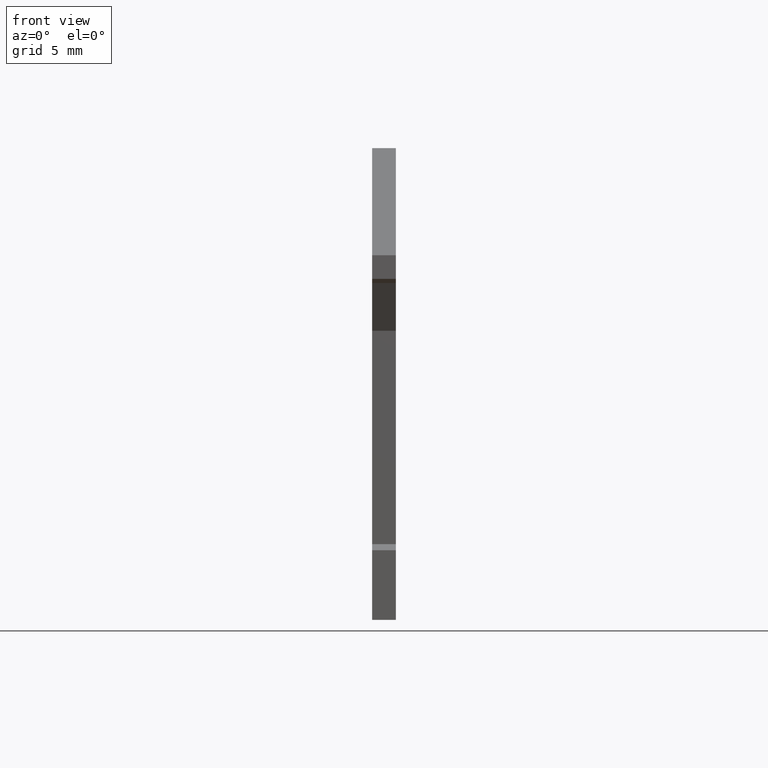
[diagram: clean part render]
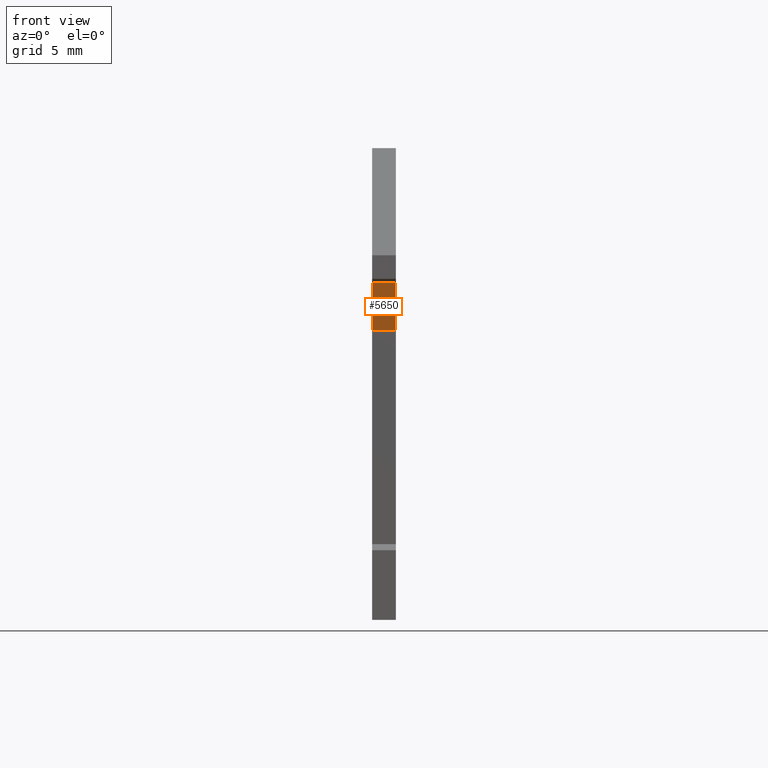
[diagram: same view with one face highlighted and labeled with its STEP entity id]
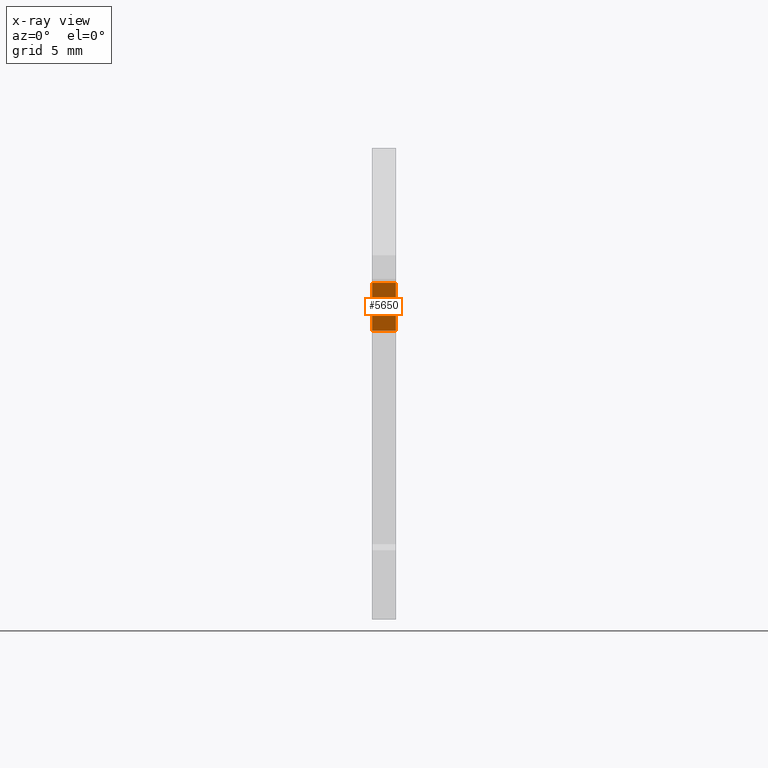
[diagram: x-ray of the same camera — body ghosted, the highlighted face saturated]
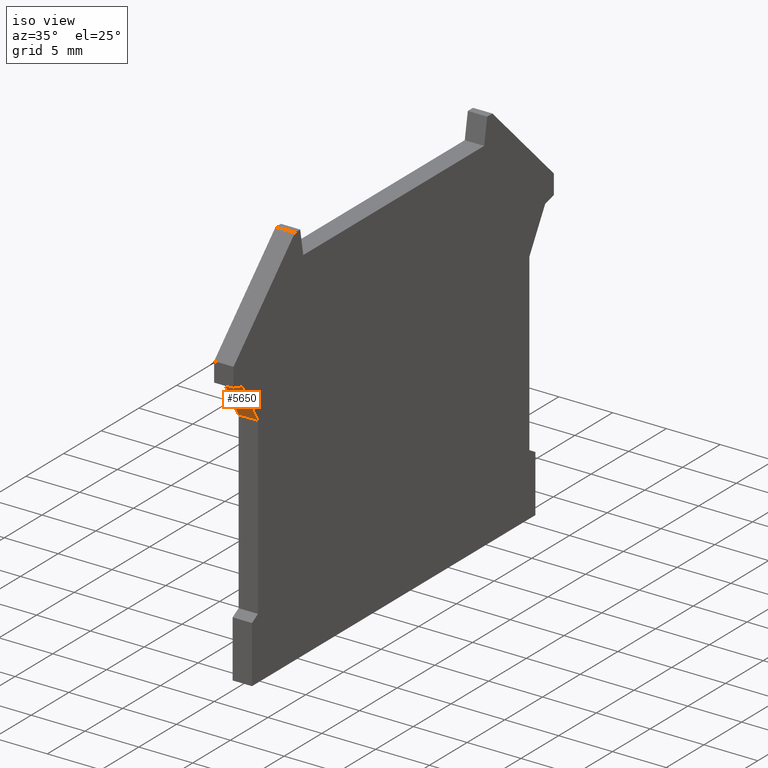
[diagram: same view with one face highlighted and labeled with its STEP entity id]
A machine part, front view. The second image highlights one B-rep face of the part: STEP entity #5650.
The next image is the same camera in x-ray: the body ghosted, the highlighted face saturated — about 0% of this face is hidden behind the body in this view.
A second angle (iso view) of the same face is appended — the face is thin or edge-on in the first view.
In plain terms, the highlighted planar face has unit normal (-0, -0.866, -0.5).
Its self-contained STEP definition (entity closure, byte-faithful):
#100=CARTESIAN_POINT('',(11.5443975377984,250.608100844792,-3.3));
#110=VERTEX_POINT('',#100);
#1560=CARTESIAN_POINT('',(9.44439753779835,254.245407540687,-3.3));
#1570=VERTEX_POINT('',#1560);
#1600=CARTESIAN_POINT('',(156.233052021642,0.,-3.3));
#1610=DIRECTION('',(0.500000000000005,-0.866025403784436,0.));
#1620=VECTOR('',#1610,1.);
#1630=LINE('',#1600,#1620);
#1640=EDGE_CURVE('',#1570,#110,#1630,.T.);
#3070=CARTESIAN_POINT('',(11.5443975377984,250.608100844792,-1.5));
#3080=VERTEX_POINT('',#3070);
#3110=CARTESIAN_POINT('',(156.233052021642,0.,-1.5));
#3120=DIRECTION('',(0.500000000000005,-0.866025403784436,0.));
#3130=VECTOR('',#3120,1.);
#3140=LINE('',#3110,#3130);
#3150=CARTESIAN_POINT('',(9.44439753779835,254.245407540687,-1.5));
#3160=VERTEX_POINT('',#3150);
#3170=EDGE_CURVE('',#3160,#3080,#3140,.T.);
#3570=CARTESIAN_POINT('',(9.44439753779839,254.245407540687,0.));
#3580=DIRECTION('',(0.,0.,1.));
#3590=VECTOR('',#3580,1.);
#3600=LINE('',#3570,#3590);
#3610=EDGE_CURVE('',#1570,#3160,#3600,.T.);
#5490=CARTESIAN_POINT('',(9.4443975377984,254.245407540687,0.));
#5500=DIRECTION('',(-0.866025403784436,-0.500000000000005,-0.));
#5510=DIRECTION('',(-0.500000000000005,0.866025403784436,0.));
#5520=AXIS2_PLACEMENT_3D('',#5490,#5500,#5510);
#5530=PLANE('',#5520);
#5540=CARTESIAN_POINT('',(11.5443975377984,250.608100844792,0.));
#5550=DIRECTION('',(0.,0.,1.));
#5560=VECTOR('',#5550,1.);
#5570=LINE('',#5540,#5560);
#5580=EDGE_CURVE('',#110,#3080,#5570,.T.);
#5590=ORIENTED_EDGE('',*,*,#5580,.T.);
#5600=ORIENTED_EDGE('',*,*,#1640,.T.);
#5610=ORIENTED_EDGE('',*,*,#3610,.F.);
#5620=ORIENTED_EDGE('',*,*,#3170,.F.);
#5630=EDGE_LOOP('',(#5620,#5610,#5600,#5590));
#5640=FACE_OUTER_BOUND('',#5630,.T.);
#5650=ADVANCED_FACE('',(#5640),#5530,.T.);